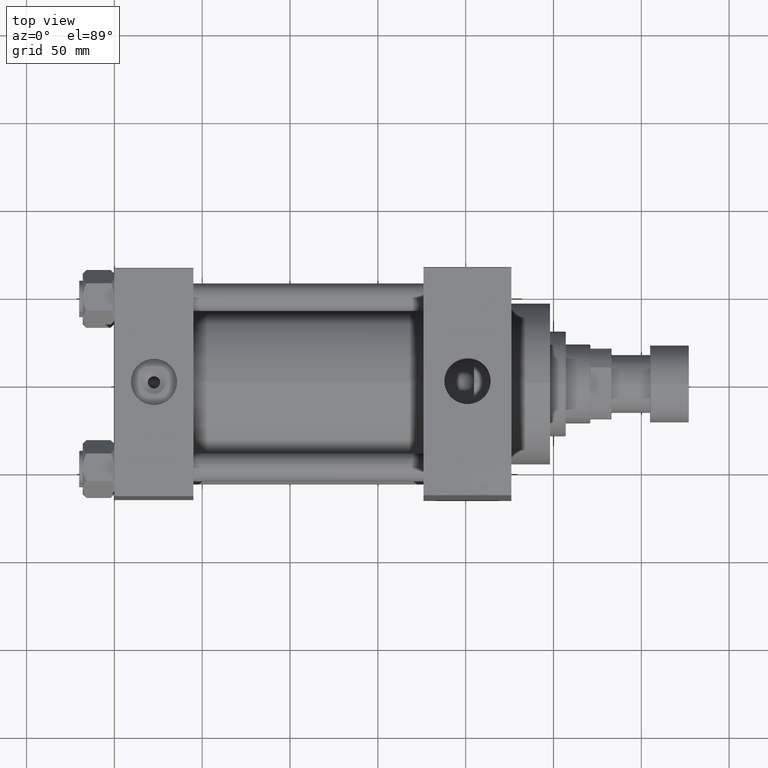
[diagram: clean part render]
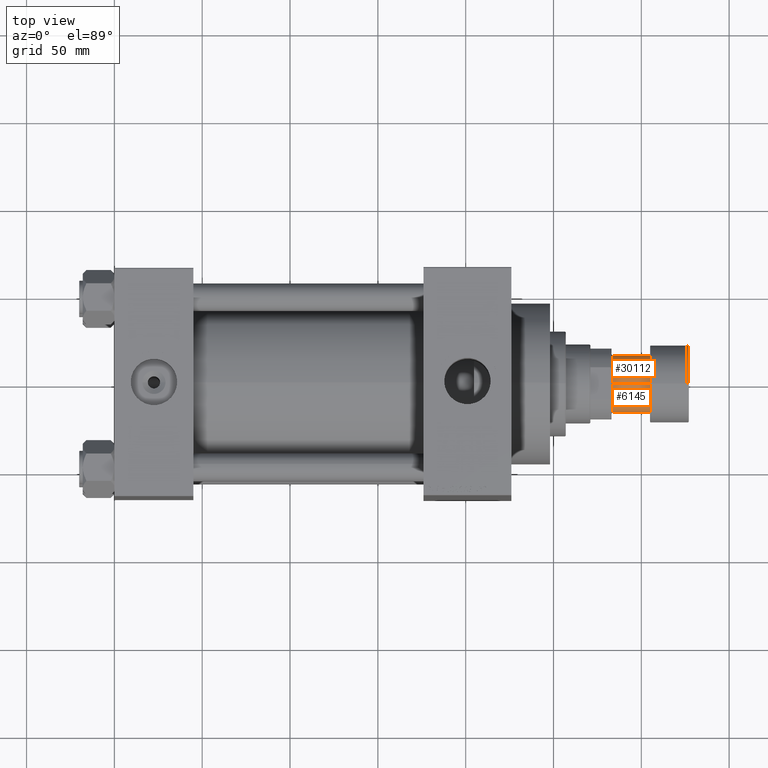
[diagram: same view with one multi-face feature highlighted, each face labeled with its STEP entity id]
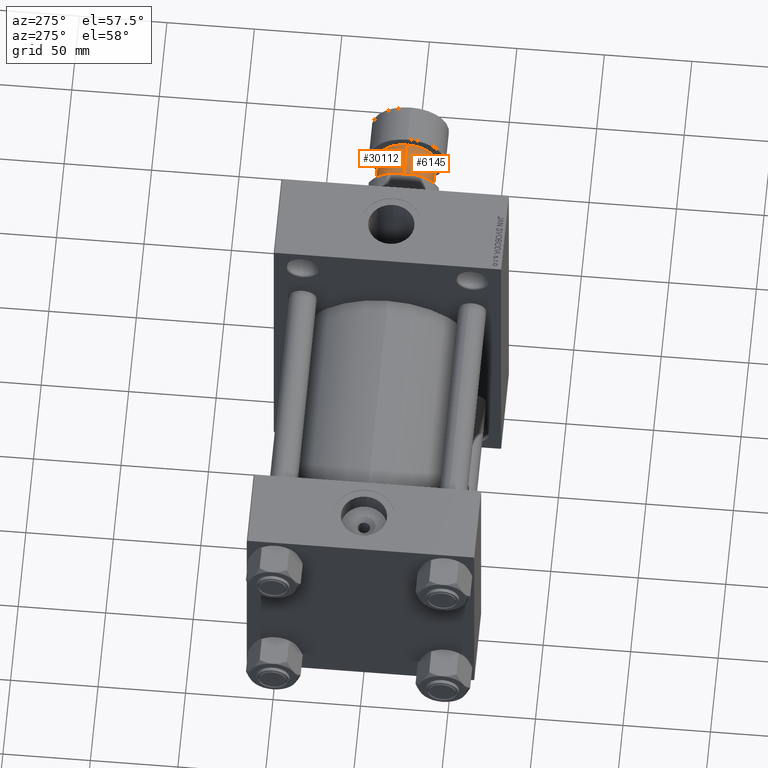
[diagram: same view with one multi-face feature highlighted, each face labeled with its STEP entity id]
A machine part, top view. The highlighted faces form ONE feature: a constant-radius fillet chain: 2 tangent blend faces with common blend radius 16.5 mm. The faces share edges in the B-rep.
A second angle (auxiliary view) of the same feature is appended — it is thin or edge-on in the first view.
Their STEP definitions:
[1] entity #30112 (Cylinder):
#2371 = VERTEX_POINT ( 'NONE', #4898 ) ;
#3543 = DIRECTION ( 'NONE',  ( 1.000000000000000000, 0.000000000000000000, 0.000000000000000000 ) ) ;
#4017 = CYLINDRICAL_SURFACE ( 'NONE', #30766, 16.50000000000000000 ) ;
#4096 = EDGE_CURVE ( 'NONE', #2371, #25181, #29928, .T. ) ;
#4269 = CARTESIAN_POINT ( 'NONE',  ( 16.50000000000000000, 0.000000000000000000, -43.50000000000000000 ) ) ;
#4898 = CARTESIAN_POINT ( 'NONE',  ( 16.50000000000000000, 0.000000000000000000, -43.50000000000000000 ) ) ;
#8373 = DIRECTION ( 'NONE',  ( 0.000000000000000000, 0.000000000000000000, -1.000000000000000000 ) ) ;
#8972 = DIRECTION ( 'NONE',  ( -0.000000000000000000, -0.000000000000000000, 1.000000000000000000 ) ) ;
#10977 = CIRCLE ( 'NONE', #31228, 16.50000000000000000 ) ;
#11420 = AXIS2_PLACEMENT_3D ( 'NONE', #43551, #24723, #16426 ) ;
#14511 = ORIENTED_EDGE ( 'NONE', *, *, #27582, .T. ) ;
#14999 = CARTESIAN_POINT ( 'NONE',  ( 0.000000000000000000, 0.000000000000000000, -43.50000000000000000 ) ) ;
#16426 = DIRECTION ( 'NONE',  ( -1.000000000000000000, 0.000000000000000000, 0.000000000000000000 ) ) ;
#16536 = LINE ( 'NONE', #42201, #30806 ) ;
#16965 = EDGE_CURVE ( 'NONE', #23302, #2371, #10977, .T. ) ;
#17124 = CARTESIAN_POINT ( 'NONE',  ( 16.50000000000000000, 0.000000000000000000, -22.00000000000000000 ) ) ;
#18443 = DIRECTION ( 'NONE',  ( -0.000000000000000000, -0.000000000000000000, 1.000000000000000000 ) ) ;
#19484 = CARTESIAN_POINT ( 'NONE',  ( -16.50000000000000000, 2.020667218593133100E-15, -43.50000000000000000 ) ) ;
#22590 = ORIENTED_EDGE ( 'NONE', *, *, #4096, .F. ) ;
#23077 = CIRCLE ( 'NONE', #11420, 16.50000000000000000 ) ;
#23302 = VERTEX_POINT ( 'NONE', #19484 ) ;
#24723 = DIRECTION ( 'NONE',  ( 0.000000000000000000, 0.000000000000000000, -1.000000000000000000 ) ) ;
#25181 = VERTEX_POINT ( 'NONE', #17124 ) ;
#27582 = EDGE_CURVE ( 'NONE', #23302, #31029, #16536, .T. ) ;
#29928 = LINE ( 'NONE', #4269, #41413 ) ;
#30112 = ADVANCED_FACE ( 'NONE', ( #45061 ), #4017, .T. ) ;
#30766 = AXIS2_PLACEMENT_3D ( 'NONE', #14999, #36994, #3543 ) ;
#30806 = VECTOR ( 'NONE', #8972, 1000.000000000000000 ) ;
#31029 = VERTEX_POINT ( 'NONE', #41268 ) ;
#31228 = AXIS2_PLACEMENT_3D ( 'NONE', #41128, #8373, #34046 ) ;
#34046 = DIRECTION ( 'NONE',  ( -1.000000000000000000, 0.000000000000000000, 0.000000000000000000 ) ) ;
#34332 = ORIENTED_EDGE ( 'NONE', *, *, #45575, .T. ) ;
#36994 = DIRECTION ( 'NONE',  ( -0.000000000000000000, -0.000000000000000000, 1.000000000000000000 ) ) ;
#41128 = CARTESIAN_POINT ( 'NONE',  ( 0.000000000000000000, 0.000000000000000000, -43.50000000000000000 ) ) ;
#41268 = CARTESIAN_POINT ( 'NONE',  ( -16.50000000000000000, 2.020667218593133100E-15, -22.00000000000000000 ) ) ;
#41350 = EDGE_LOOP ( 'NONE', ( #41415, #14511, #34332, #22590 ) ) ;
#41413 = VECTOR ( 'NONE', #18443, 1000.000000000000000 ) ;
#41415 = ORIENTED_EDGE ( 'NONE', *, *, #16965, .F. ) ;
#42201 = CARTESIAN_POINT ( 'NONE',  ( -16.50000000000000000, 2.020667218593133100E-15, -43.50000000000000000 ) ) ;
#43551 = CARTESIAN_POINT ( 'NONE',  ( 0.000000000000000000, 0.000000000000000000, -22.00000000000000000 ) ) ;
#45061 = FACE_OUTER_BOUND ( 'NONE', #41350, .T. ) ;
#45575 = EDGE_CURVE ( 'NONE', #31029, #25181, #23077, .T. ) ;
[2] entity #6145 (Cylinder):
#167 = AXIS2_PLACEMENT_3D ( 'NONE', #37022, #3331, #25061 ) ;
#2371 = VERTEX_POINT ( 'NONE', #4898 ) ;
#2903 = AXIS2_PLACEMENT_3D ( 'NONE', #32809, #17180, #36234 ) ;
#3086 = CYLINDRICAL_SURFACE ( 'NONE', #167, 16.50000000000000000 ) ;
#3331 = DIRECTION ( 'NONE',  ( -0.000000000000000000, -0.000000000000000000, 1.000000000000000000 ) ) ;
#4096 = EDGE_CURVE ( 'NONE', #2371, #25181, #29928, .T. ) ;
#4269 = CARTESIAN_POINT ( 'NONE',  ( 16.50000000000000000, 0.000000000000000000, -43.50000000000000000 ) ) ;
#4898 = CARTESIAN_POINT ( 'NONE',  ( 16.50000000000000000, 0.000000000000000000, -43.50000000000000000 ) ) ;
#6145 = ADVANCED_FACE ( 'NONE', ( #18449 ), #3086, .T. ) ;
#8972 = DIRECTION ( 'NONE',  ( -0.000000000000000000, -0.000000000000000000, 1.000000000000000000 ) ) ;
#11844 = DIRECTION ( 'NONE',  ( -1.000000000000000000, 0.000000000000000000, 0.000000000000000000 ) ) ;
#13712 = CIRCLE ( 'NONE', #2903, 16.50000000000000000 ) ;
#14663 = EDGE_CURVE ( 'NONE', #25181, #31029, #13712, .T. ) ;
#16536 = LINE ( 'NONE', #42201, #30806 ) ;
#17124 = CARTESIAN_POINT ( 'NONE',  ( 16.50000000000000000, 0.000000000000000000, -22.00000000000000000 ) ) ;
#17180 = DIRECTION ( 'NONE',  ( 0.000000000000000000, 0.000000000000000000, -1.000000000000000000 ) ) ;
#18443 = DIRECTION ( 'NONE',  ( -0.000000000000000000, -0.000000000000000000, 1.000000000000000000 ) ) ;
#18449 = FACE_OUTER_BOUND ( 'NONE', #29113, .T. ) ;
#19423 = ORIENTED_EDGE ( 'NONE', *, *, #14663, .T. ) ;
#19484 = CARTESIAN_POINT ( 'NONE',  ( -16.50000000000000000, 2.020667218593133100E-15, -43.50000000000000000 ) ) ;
#23302 = VERTEX_POINT ( 'NONE', #19484 ) ;
#25061 = DIRECTION ( 'NONE',  ( 1.000000000000000000, 0.000000000000000000, 0.000000000000000000 ) ) ;
#25181 = VERTEX_POINT ( 'NONE', #17124 ) ;
#25742 = ORIENTED_EDGE ( 'NONE', *, *, #44467, .F. ) ;
#25772 = ORIENTED_EDGE ( 'NONE', *, *, #27582, .F. ) ;
#27582 = EDGE_CURVE ( 'NONE', #23302, #31029, #16536, .T. ) ;
#29113 = EDGE_LOOP ( 'NONE', ( #25772, #25742, #47673, #19423 ) ) ;
#29928 = LINE ( 'NONE', #4269, #41413 ) ;
#30411 = CARTESIAN_POINT ( 'NONE',  ( 0.000000000000000000, 0.000000000000000000, -43.50000000000000000 ) ) ;
#30806 = VECTOR ( 'NONE', #8972, 1000.000000000000000 ) ;
#30866 = CIRCLE ( 'NONE', #31649, 16.50000000000000000 ) ;
#31029 = VERTEX_POINT ( 'NONE', #41268 ) ;
#31649 = AXIS2_PLACEMENT_3D ( 'NONE', #30411, #33848, #11844 ) ;
#32809 = CARTESIAN_POINT ( 'NONE',  ( 0.000000000000000000, 0.000000000000000000, -22.00000000000000000 ) ) ;
#33848 = DIRECTION ( 'NONE',  ( 0.000000000000000000, 0.000000000000000000, -1.000000000000000000 ) ) ;
#36234 = DIRECTION ( 'NONE',  ( -1.000000000000000000, 0.000000000000000000, 0.000000000000000000 ) ) ;
#37022 = CARTESIAN_POINT ( 'NONE',  ( 0.000000000000000000, 0.000000000000000000, -43.50000000000000000 ) ) ;
#41268 = CARTESIAN_POINT ( 'NONE',  ( -16.50000000000000000, 2.020667218593133100E-15, -22.00000000000000000 ) ) ;
#41413 = VECTOR ( 'NONE', #18443, 1000.000000000000000 ) ;
#42201 = CARTESIAN_POINT ( 'NONE',  ( -16.50000000000000000, 2.020667218593133100E-15, -43.50000000000000000 ) ) ;
#44467 = EDGE_CURVE ( 'NONE', #2371, #23302, #30866, .T. ) ;
#47673 = ORIENTED_EDGE ( 'NONE', *, *, #4096, .T. ) ;